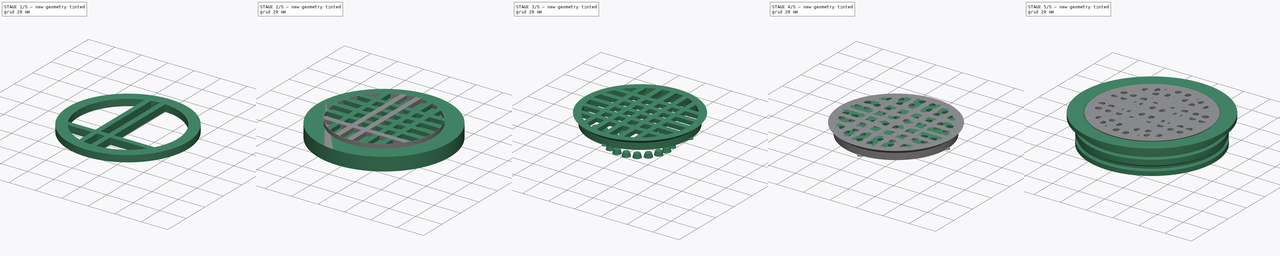
[diagram: build sequence overview — one tinted view per stage of 5, left to right]
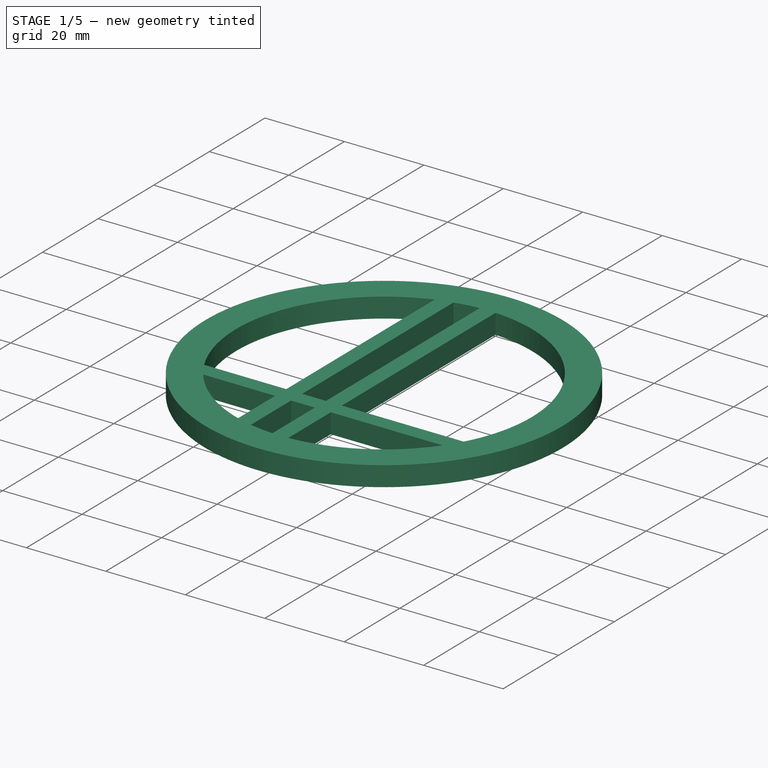
[diagram: stage 1 of 5 — iso view after this stage's code; geometry added in this stage tinted green]
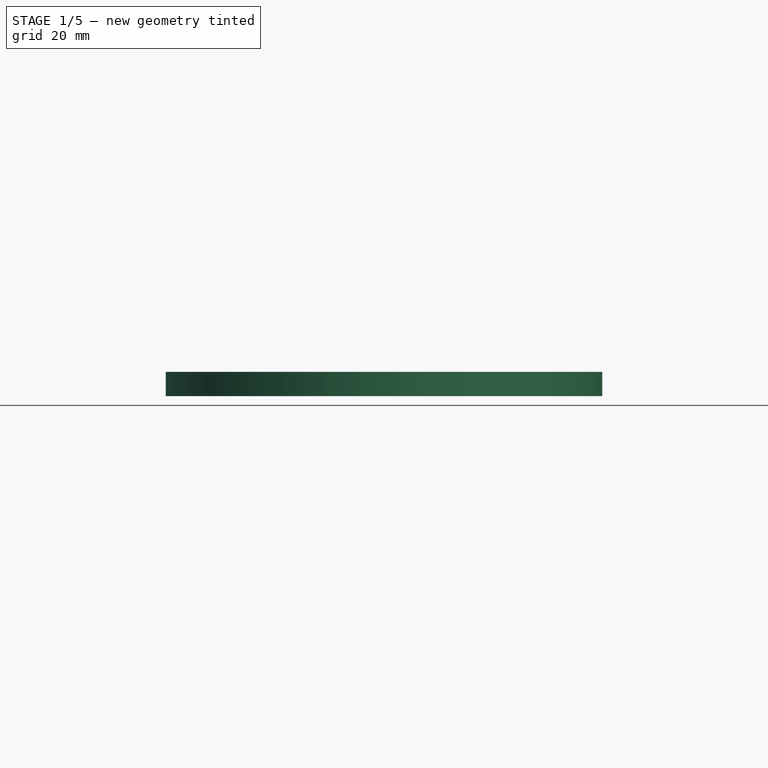
[diagram: stage 1 of 5 — front view after this stage's code; geometry added in this stage tinted green]
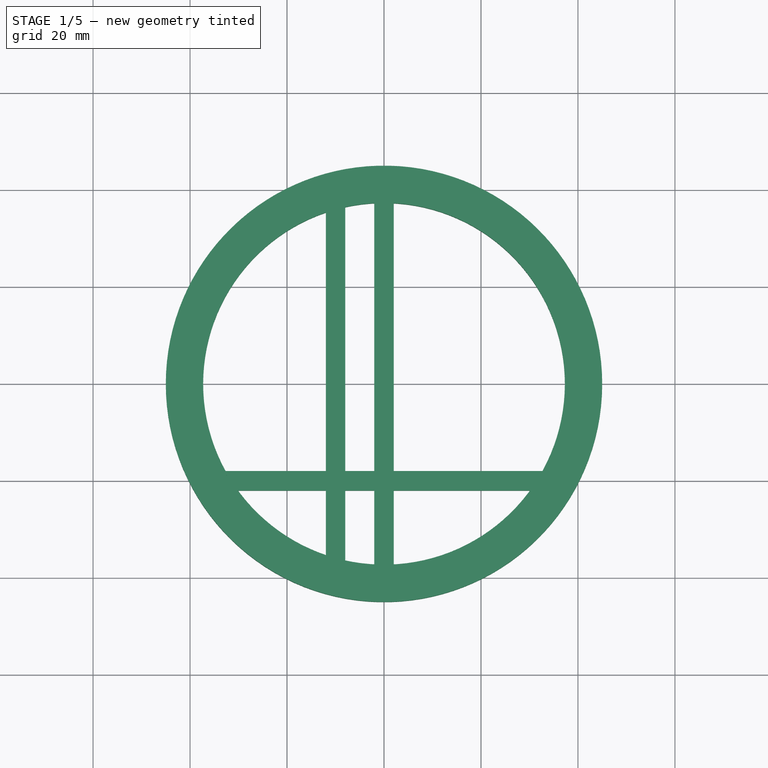
[diagram: stage 1 of 5 — top view after this stage's code; geometry added in this stage tinted green]
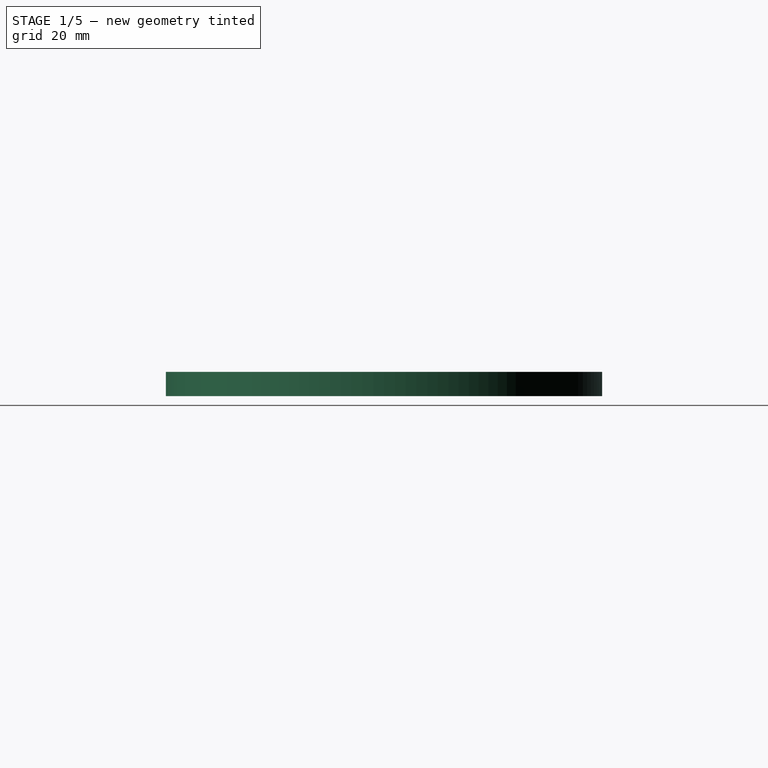
[diagram: stage 1 of 5 — right view after this stage's code; geometry added in this stage tinted green]
FCSTD DOCUMENT  (FreeCAD 0.18R4 (GitTag))
Label: rejilla_v5.0
License: All rights reserved
LicenseURL: http://en.wikipedia.org/wiki/All_rights_reserved
objects: Part::Box×10, Sketcher::SketchObject×7, Part::Cone×6, Part::Cylinder×6, Part::FeaturePython×5, Part::Cut×5, PartDesign::PolarPattern×4, Part::MultiFuse×4, PartDesign::Revolution×3, PartDesign::Body×3, PartDesign::Pocket×2, PartDesign::Pad×2
note: 64 computed .brp shape members not serialized (recipe doc carries the construction recipe); baked Part::Feature solids carry a one-line shape summary decoded from their .brp

FEATURE [Part::Cylinder] Cylinder060
  Angle = 360
  AttacherType = Attacher::AttachEngine3D
  Height = 5
  Placement = pos=(0,0,-41) rot=(0,0,1;0rad)
  Radius = 37.5
FEATURE [Part::Cylinder] Cylinder059
  Angle = 360
  AttacherType = Attacher::AttachEngine3D
  Height = 5
  Placement = pos=(0,0,-41) rot=(0,0,1;0rad)
  Radius = 45
FEATURE [Part::Box] Box022  label="Cube022"
  AttacherType = Attacher::AttachEngine3D
  Height = 5
  Length = 74
  Placement = pos=(-8,-37,-41) rot=(0,0,1;1.5708rad)
  Width = 4
FEATURE [Part::Cylinder] Cylinder067
  Angle = 360
  AttacherType = Attacher::AttachEngine3D
  Height = 5
  Placement = pos=(0,0,-41) rot=(0,0,1;0rad)
  Radius = 37.5
FEATURE [Part::Box] Box029  label="Cube029"
  AttacherType = Attacher::AttachEngine3D
  Height = 5
  Length = 76
  Placement = pos=(2,-38,-41) rot=(0,0,1;1.5708rad)
  Width = 4
FEATURE [Part::Box] Box027  label="Cube027"
  AttacherType = Attacher::AttachEngine3D
  Height = 5
  Length = 66
  Placement = pos=(-33,-22,-41) rot=(0,0,1;0rad)
  Width = 4
FEATURE [Part::Cylinder] Cylinder065
  Angle = 360
  AttacherType = Attacher::AttachEngine3D
  Height = 5
  Placement = pos=(0,0,-41) rot=(0,0,1;0rad)
  Radius = 37.3
FEATURE [Part::Cut] Cut032
  Base = -> Cylinder059
  Tool = -> Cylinder067
FEATURE [Part::Cut] Cut035  label="anillo002"
  Base = -> Cylinder060
  Tool = -> Cylinder065
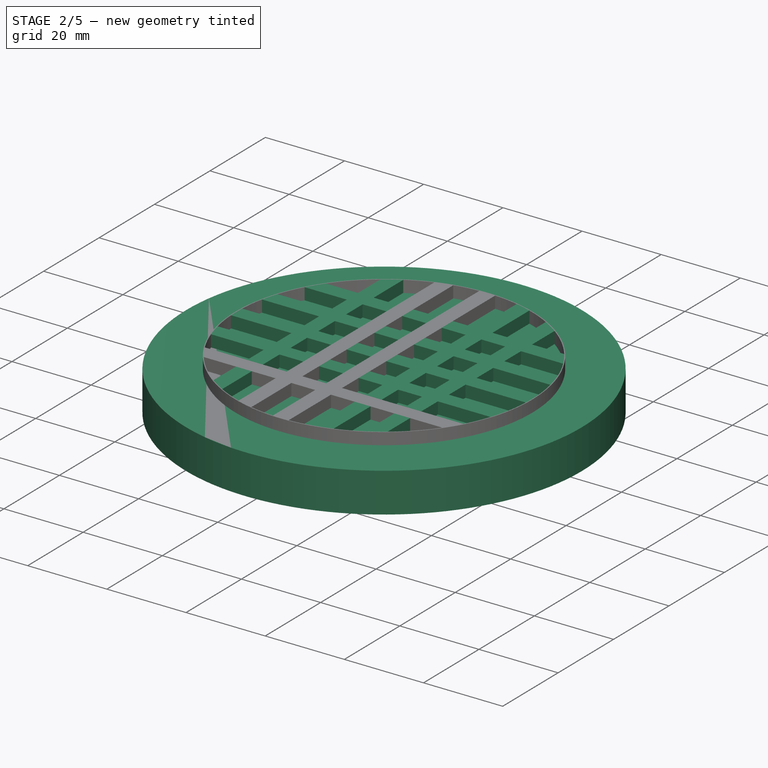
[diagram: stage 2 of 5 — iso view after this stage's code; geometry added in this stage tinted green]
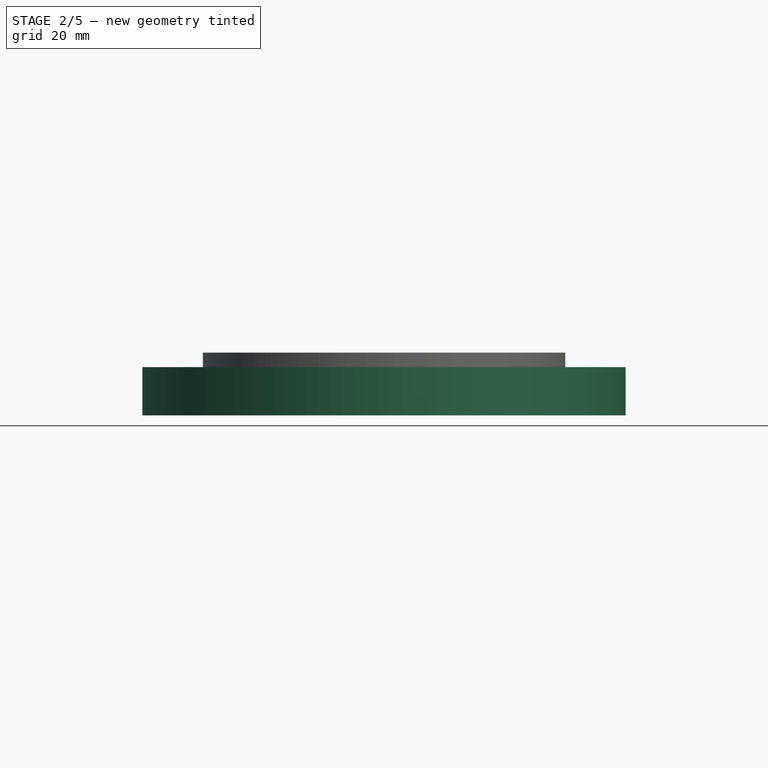
[diagram: stage 2 of 5 — front view after this stage's code; geometry added in this stage tinted green]
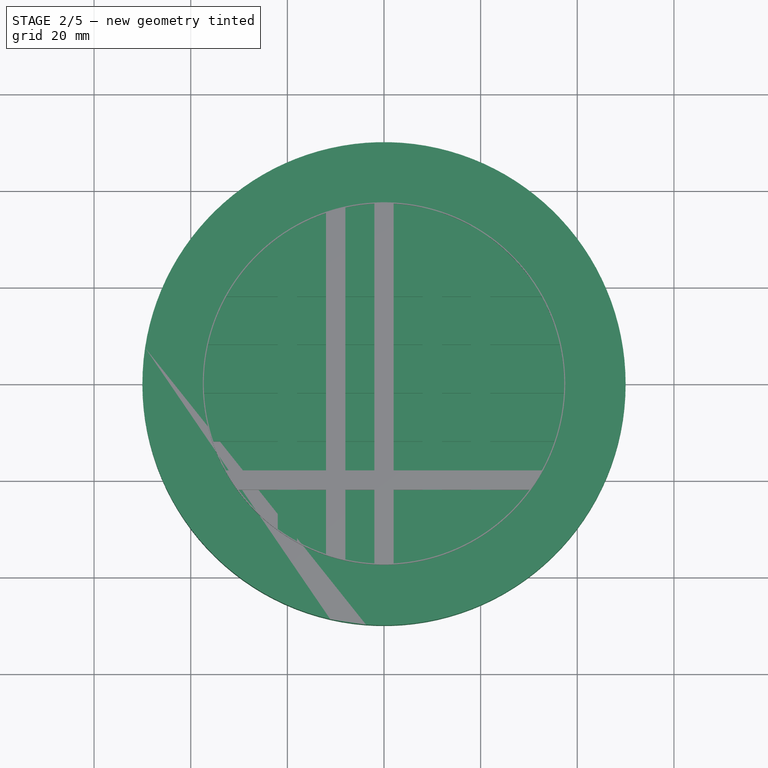
[diagram: stage 2 of 5 — top view after this stage's code; geometry added in this stage tinted green]
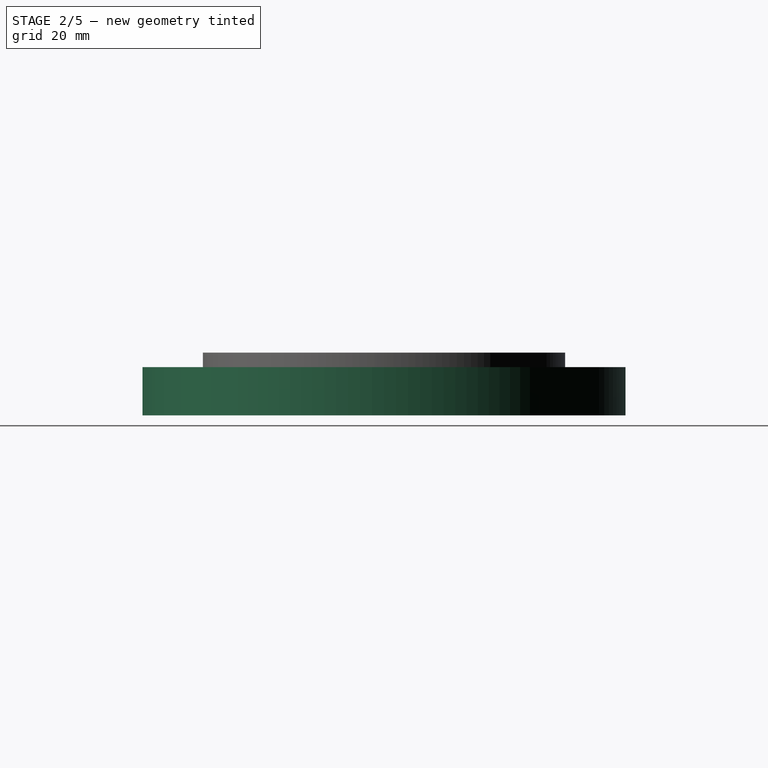
[diagram: stage 2 of 5 — right view after this stage's code; geometry added in this stage tinted green]
FEATURE [Part::Box] Box021  label="Cube021"
  AttacherType = Attacher::AttachEngine3D
  Height = 5
  Length = 66
  Placement = pos=(-33,18,-41) rot=(0,0,1;0rad)
  Width = 4
FEATURE [Part::Box] Box023  label="Cube023"
  AttacherType = Attacher::AttachEngine3D
  Height = 5
  Length = 74
  Placement = pos=(12,-37,-41) rot=(0,0,1;1.5708rad)
  Width = 4
FEATURE [Part::Box] Box028  label="Cube028"
  AttacherType = Attacher::AttachEngine3D
  Height = 5
  Length = 66
  Placement = pos=(22,-33,-41) rot=(0,0,1;1.5708rad)
  Width = 4
FEATURE [Part::Box] Box025  label="Cube025"
  AttacherType = Attacher::AttachEngine3D
  Height = 5
  Length = 74
  Placement = pos=(-37,-12,-41) rot=(0,0,1;0rad)
  Width = 4
FEATURE [Part::Box] Box024  label="Cube024"
  AttacherType = Attacher::AttachEngine3D
  Height = 5
  Length = 66
  Placement = pos=(-18,-33,-41) rot=(0,0,1;1.5708rad)
  Width = 4
FEATURE [Part::Cylinder] Cylinder063
  Angle = 360
  AttacherType = Attacher::AttachEngine3D
  Height = 10
  Placement = pos=(0,0,-49) rot=(0,0,1;0rad)
  Radius = 50
FEATURE [Part::Box] Box020  label="Cube020"
  AttacherType = Attacher::AttachEngine3D
  Height = 5
  Length = 74
  Placement = pos=(-37,8,-41) rot=(0,0,1;0rad)
  Width = 4
FEATURE [Part::Box] Box026  label="Cube026"
  AttacherType = Attacher::AttachEngine3D
  Height = 5
  Length = 76
  Placement = pos=(-38,-2,-41) rot=(0,0,1;0rad)
  Width = 4
FEATURE [Part::MultiFuse] Fusion022
  Shapes = -> [Cut035,Box024,Box028,Box022,Box020,Box025,Box027,Box026,Box021,Box029,Box023]
FEATURE [Part::Cut] Cut036  label="panal_version_1"
  Base = -> Fusion022
  Tool = -> Cut032
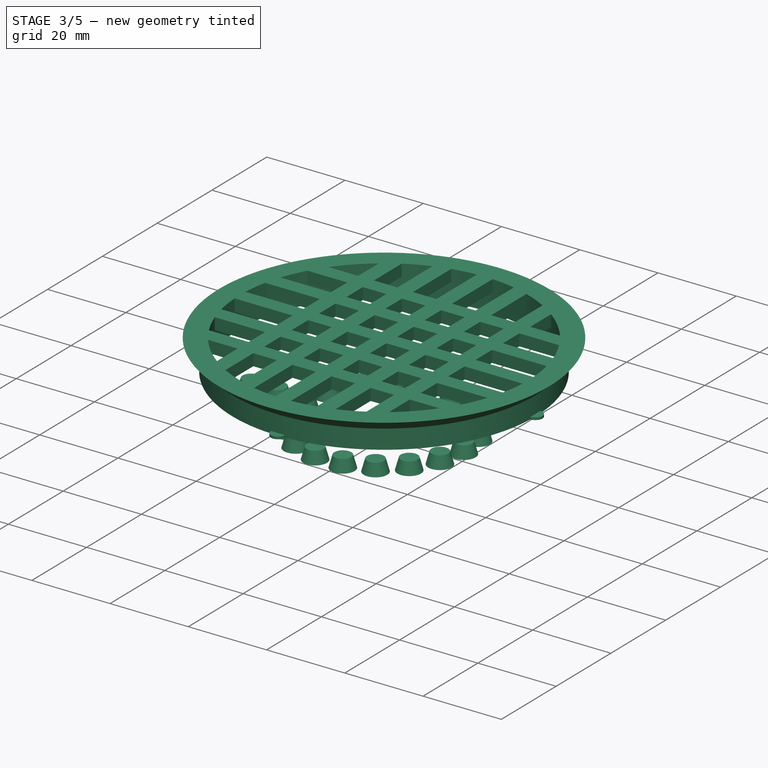
[diagram: stage 3 of 5 — iso view after this stage's code; geometry added in this stage tinted green]
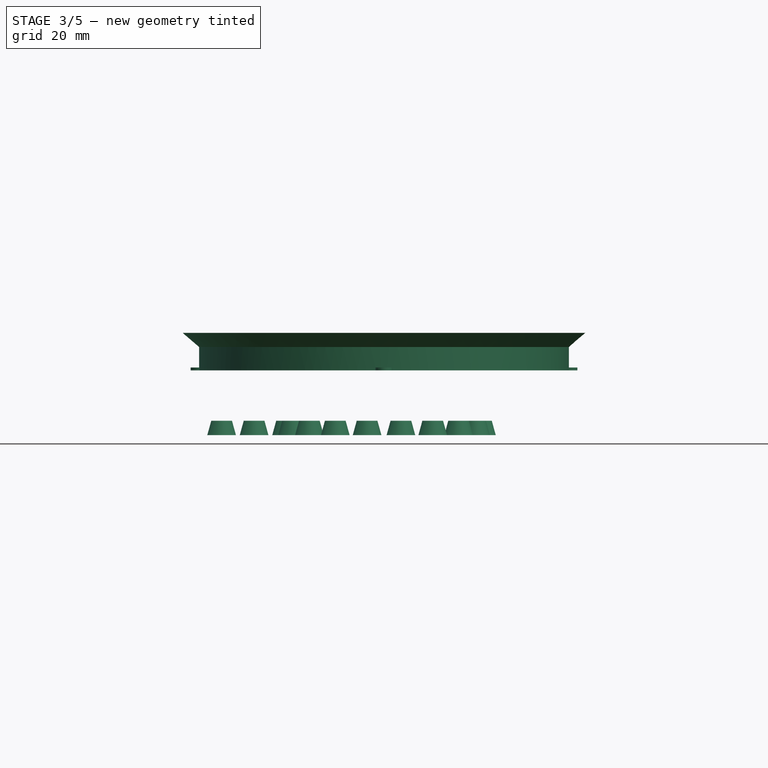
[diagram: stage 3 of 5 — front view after this stage's code; geometry added in this stage tinted green]
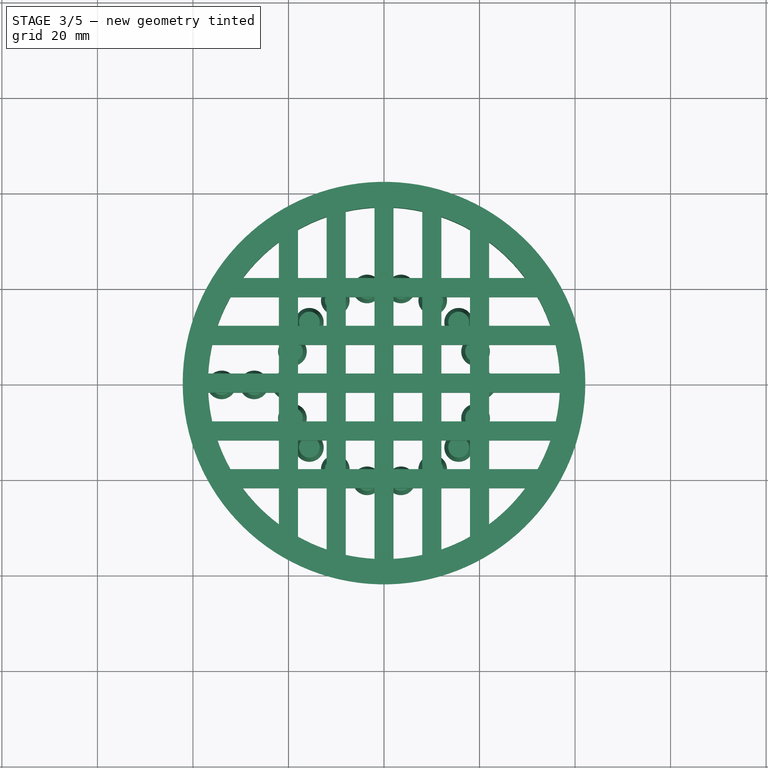
[diagram: stage 3 of 5 — top view after this stage's code; geometry added in this stage tinted green]
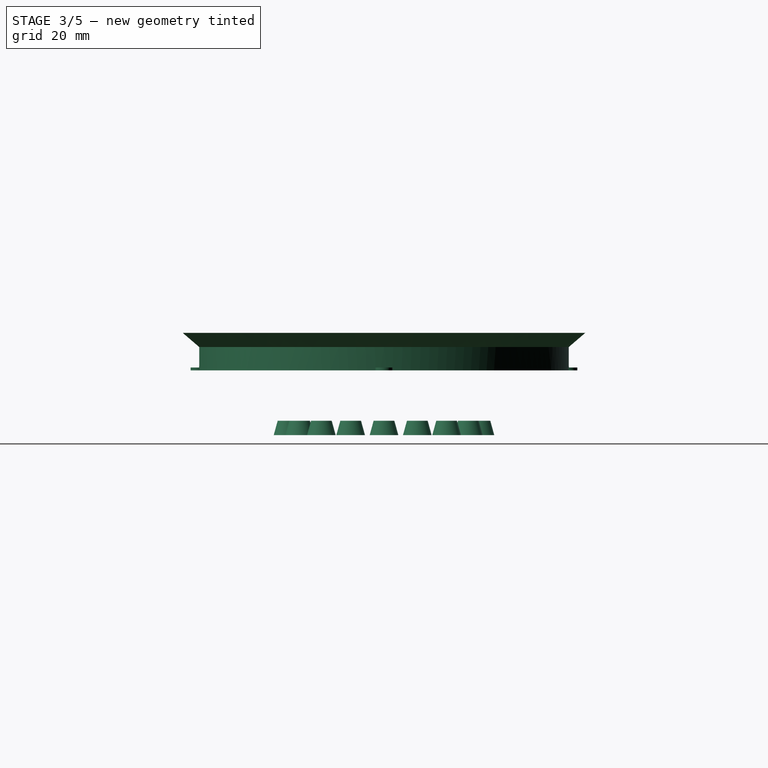
[diagram: stage 3 of 5 — right view after this stage's code; geometry added in this stage tinted green]
FEATURE [Part::Cone] Cone010  label="Cone004"
  Angle = 360
  AttacherType = Attacher::AttachEngine3D
  Height = 3
  Placement = pos=(-20.4,0,0) rot=(0,0,1;0rad)
  Radius1 = 3
  Radius2 = 2.17
FEATURE [Part::FeaturePython] Array007  # Draft array (typed FeaturePython)
  Angle = 360
  ArrayType = 1
  Axis = (0,0,1)
  Base = -> Cone010
  Center = (0,0,0)
  Fuse = false
  IntervalAxis = (0,0,0)
  IntervalX = (1,0,0)
  IntervalY = (0,1,0)
  IntervalZ = (0,0,1)
  NumberPolar = 18
  NumberX = 2
  NumberY = 2
  NumberZ = 1
FEATURE [Part::Cone] Cone011  label="Cone005"
  Angle = 360
  AttacherType = Attacher::AttachEngine3D
  Height = 3
  Placement = pos=(-27.2,0,0) rot=(0,0,1;0rad)
  Radius1 = 3
  Radius2 = 2.17
FEATURE [Part::Cone] Cone012  label="Cone006"
  Angle = 360
  AttacherType = Attacher::AttachEngine3D
  Height = 3
  Placement = pos=(-34,0,0) rot=(0,0,1;0rad)
  Radius1 = 3
  Radius2 = 2.17
FEATURE [Sketcher::SketchObject] Sketch006
  MapMode = 5
  Placement = pos=(0,0,0) rot=(1,0,0;1.5708rad)
  Support = -> [XZ_Plane002]
  sketch-geometry (7):
    g0: LineSegment StartX=-36.85 StartY=13.55 StartZ=0 EndX=-38.7 EndY=13.55 EndZ=0
    g1: LineSegment StartX=-38.7 StartY=13.55 StartZ=0 EndX=-38.7 EndY=18.443 EndZ=0
    g2: LineSegment StartX=-38.7 StartY=18.443 StartZ=0 EndX=-42.15 EndY=21.4 EndZ=0
    g3: LineSegment StartX=-42.15 StartY=21.4 StartZ=0 EndX=-36.85 EndY=21.4 EndZ=0
    g4: LineSegment [constr] StartX=-47 StartY=24.8283 StartZ=0 EndX=-31.8146 EndY=11.8128 EndZ=0
    g5: LineSegment StartX=-36.85 StartY=21.4 StartZ=0 EndX=-36.85 EndY=13.55 EndZ=0
    g6: LineSegment [constr] StartX=-39.5 StartY=18.4 StartZ=0 EndX=-9.5 EndY=18.4 EndZ=0
  constraints (23):
    c: Angle(g-1,g4) = 2.43299
    c: Coincident(g3,g2)
    c: Coincident(g1,g2)
    c: Coincident(g0,g1)
    c: Vertical(g5)
    c: Vertical(g1)
    c: Horizontal(g3)
    c: Horizontal(g0)
    c: Parallel(g2,g4)
    c: Coincident(g3,g5)
    c: Distance(g4) = 20
    c: Horizontal(g6)
    c: PointOnObject(g6,g4)
    c: DistanceY(g-1,g6) = 18.4
    c: DistanceX(g6,g6) = 30
    c: DistanceX(g6,g-1) = 39.5
    c: DistanceX(g4,g-1) = 47
    c: Coincident(g0,g5)
    c: DistanceX(g2,g-1) = 42.15
    c: DistanceY(g-1,g3) = 21.4
    c: DistanceX(g3,g-1) = 36.85
    c: DistanceY(g5,g5) = 7.85
    c: DistanceX(g0,g-1) = 38.7
FEATURE [PartDesign::Revolution] Revolution002
  Angle = 360
  Axis = (0,2e-16,1)
  Base = (0,0,0)
  Placement = pos=(0,0,0) rot=(1,0,0;1.5708rad)
  Profile = -> Sketch006
  ReferenceAxis = -> Sketch006 [V_Axis]
FEATURE [Sketcher::SketchObject] Sketch005
  ExternalGeometry = -> [Revolution002]
  MapMode = 5
  Placement = pos=(0,9e-15,13.55) rot=(1,0,0;3.14159rad)
  Support = -> [Revolution002]
  sketch-geometry (1):
    g0: Circle CenterX=-38.7 CenterY=0 CenterZ=0 NormalX=0 NormalY=0 NormalZ=1 AngleXU=0 Radius=1.8
  constraints (3):
    c: PointOnObject(g0,g-3)
    c: PointOnObject(g0,g-1)
    c: Radius(g0) = 1.8
FEATURE [PartDesign::Pad] Pad001
  BaseFeature = -> Revolution002
  Length = 0.6
  Length2 = 100
  Placement = pos=(0,0,0) rot=(1,0,0;1.5708rad)
  Profile = -> Sketch005
  Reversed = true
  Type = 0
FEATURE [PartDesign::PolarPattern] PolarPattern003
  Angle = 360
  Axis = -> Sketch005 [N_Axis]
  BaseFeature = -> Pad001
  Occurrences = 4
  Originals = -> [Pad001]
  Placement = pos=(0,0,0) rot=(1,0,0;1.5708rad)
FEATURE [Part::Cut] Cut034  label="panal_version1"
  Base = -> Cut036
  Placement = pos=(0,0,57.4) rot=(0,0,1;0rad)
  Tool = -> Cylinder063
FEATURE [Part::MultiFuse] Fusion036  label="interno1"
  Shapes = -> [Body002,Cut034]
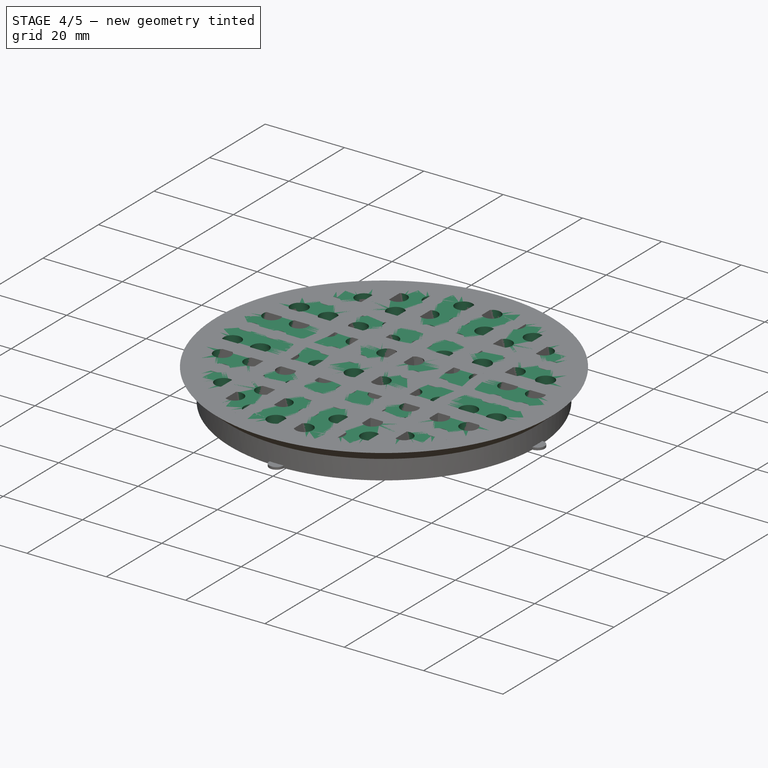
[diagram: stage 4 of 5 — iso view after this stage's code; geometry added in this stage tinted green]
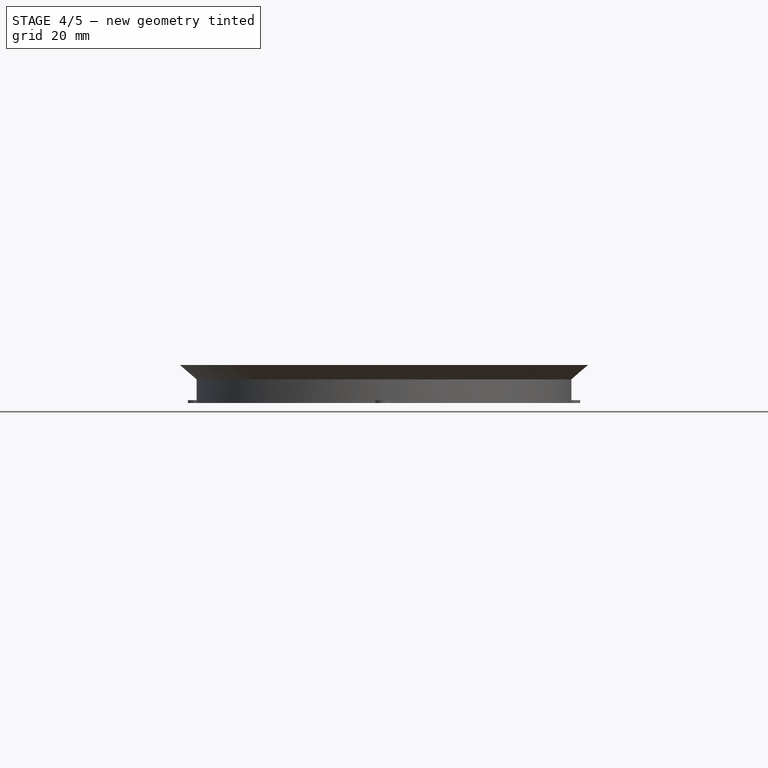
[diagram: stage 4 of 5 — front view after this stage's code; geometry added in this stage tinted green]
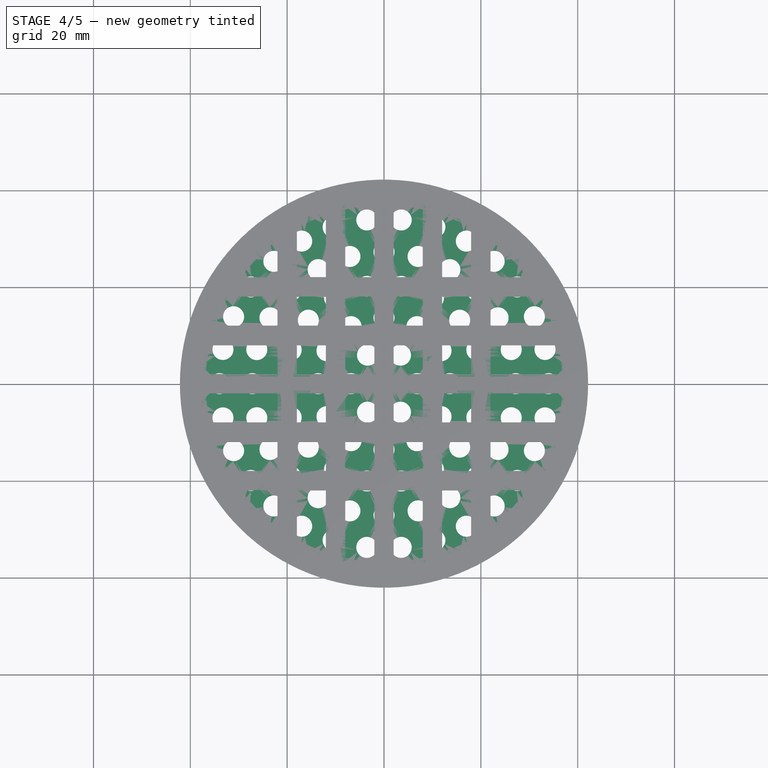
[diagram: stage 4 of 5 — top view after this stage's code; geometry added in this stage tinted green]
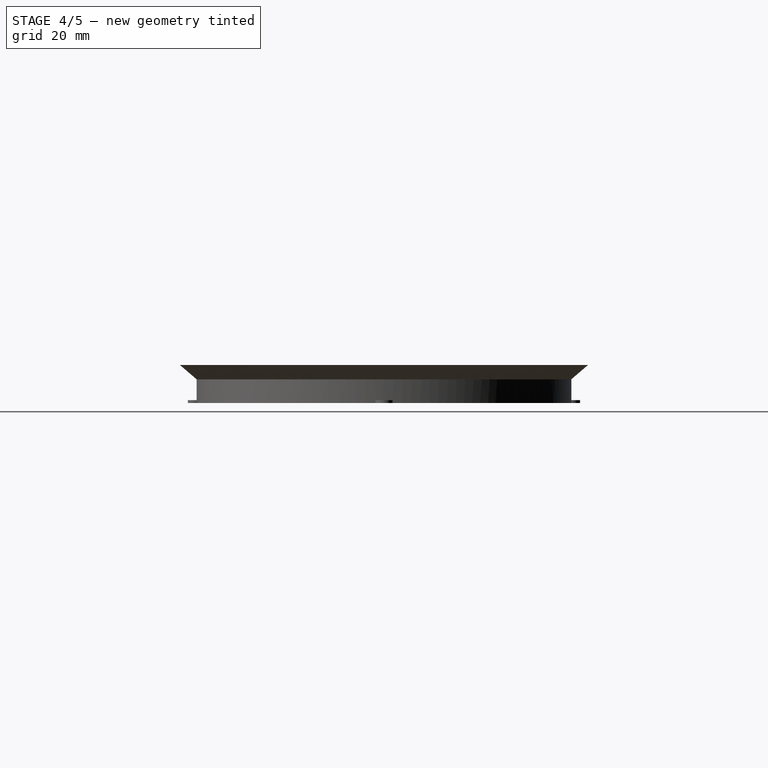
[diagram: stage 4 of 5 — right view after this stage's code; geometry added in this stage tinted green]
FEATURE [PartDesign::Body] Body001  label="aro_interno"
  Group = -> [Sketch003,Revolution001,Sketch004,Pad,PolarPattern002]
  Origin = -> Origin001
  Tip = -> PolarPattern002
FEATURE [Part::Cone] Cone009  label="Cone003"
  Angle = 360
  AttacherType = Attacher::AttachEngine3D
  Height = 3
  Placement = pos=(-13.6,0,0) rot=(0,0,1;0rad)
  Radius1 = 3
  Radius2 = 2.17
FEATURE [Part::Cone] Cone007  label="Cone001"
  Angle = 360
  AttacherType = Attacher::AttachEngine3D
  Height = 3
  Radius1 = 3
  Radius2 = 2.17
FEATURE [Part::Cone] Cone008  label="Cone002"
  Angle = 360
  AttacherType = Attacher::AttachEngine3D
  Height = 3
  Placement = pos=(-6.8,0,0) rot=(0,0,1;0rad)
  Radius1 = 3
  Radius2 = 2.17
FEATURE [Part::FeaturePython] Array005  # Draft array (typed FeaturePython)
  Angle = 360
  ArrayType = 1
  Axis = (0,0,1)
  Base = -> Cone008
  Center = (0,0,0)
  Fuse = false
  IntervalAxis = (0,0,0)
  IntervalX = (1,0,0)
  IntervalY = (0,1,0)
  IntervalZ = (0,0,1)
  NumberPolar = 6
  NumberX = 2
  NumberY = 2
  NumberZ = 1
FEATURE [Part::FeaturePython] Array006  # Draft array (typed FeaturePython)
  Angle = 360
  ArrayType = 1
  Axis = (0,0,1)
  Base = -> Cone009
  Center = (0,0,0)
  Fuse = false
  IntervalAxis = (0,0,0)
  IntervalX = (1,0,0)
  IntervalY = (0,1,0)
  IntervalZ = (0,0,1)
  NumberPolar = 12
  NumberX = 2
  NumberY = 2
  NumberZ = 1
FEATURE [Part::Cylinder] Cylinder106
  Angle = 360
  AttacherType = Attacher::AttachEngine3D
  Height = 3
  Radius = 38
FEATURE [Part::FeaturePython] Array008  # Draft array (typed FeaturePython)
  Angle = 360
  ArrayType = 1
  Axis = (0,0,1)
  Base = -> Cone011
  Center = (0,0,0)
  Fuse = false
  IntervalAxis = (0,0,0)
  IntervalX = (1,0,0)
  IntervalY = (0,1,0)
  IntervalZ = (0,0,1)
  NumberPolar = 24
  NumberX = 2
  NumberY = 2
  NumberZ = 1
FEATURE [Part::FeaturePython] Array009  # Draft array (typed FeaturePython)
  Angle = 360
  ArrayType = 1
  Axis = (0,0,1)
  Base = -> Cone012
  Center = (0,0,0)
  Fuse = false
  IntervalAxis = (0,0,0)
  IntervalX = (1,0,0)
  IntervalY = (0,1,0)
  IntervalZ = (0,0,1)
  NumberPolar = 30
  NumberX = 2
  NumberY = 2
  NumberZ = 1
FEATURE [Part::MultiFuse] Fusion035
  Shapes = -> [Cone007,Array005,Array006,Array007,Array008,Array009]
FEATURE [Part::Cut] Cut053  label="panal2_v2"
  Base = -> Cylinder106
  Placement = pos=(2.5e-15,0,18.4) rot=(0,0,1;0rad)
  Tool = -> Fusion035
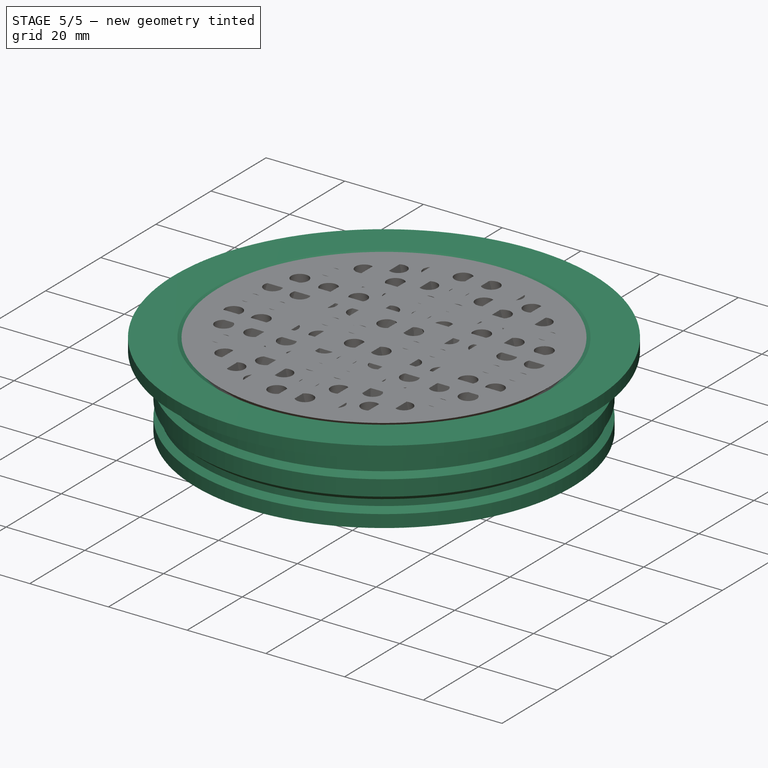
[diagram: stage 5 of 5 — iso view after this stage's code; geometry added in this stage tinted green]
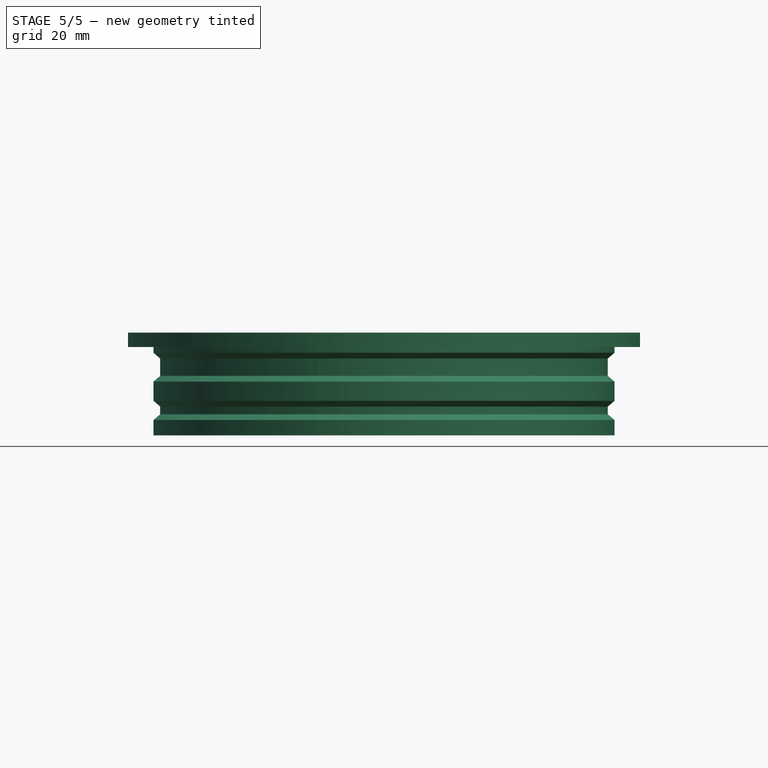
[diagram: stage 5 of 5 — front view after this stage's code; geometry added in this stage tinted green]
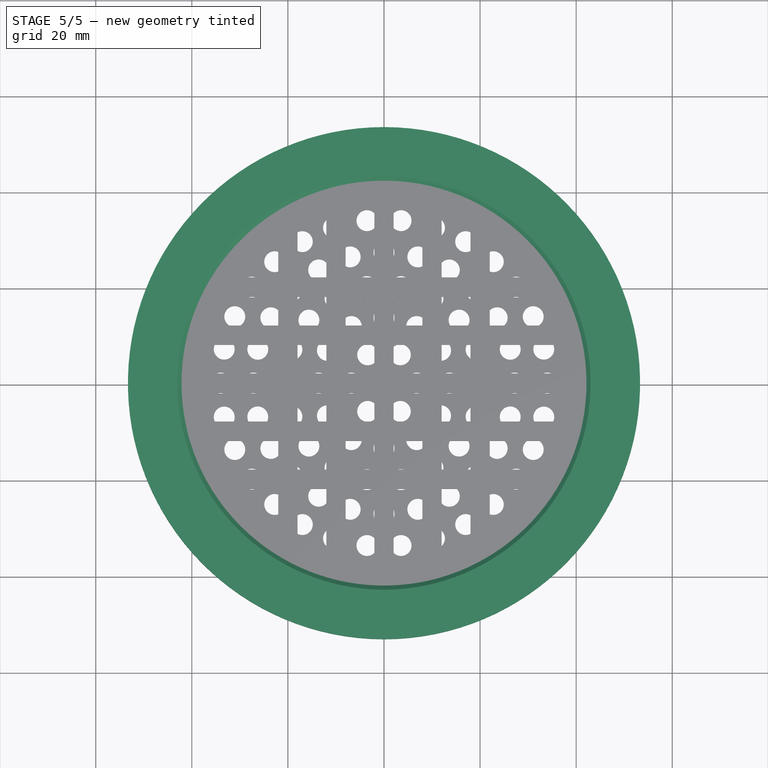
[diagram: stage 5 of 5 — top view after this stage's code; geometry added in this stage tinted green]
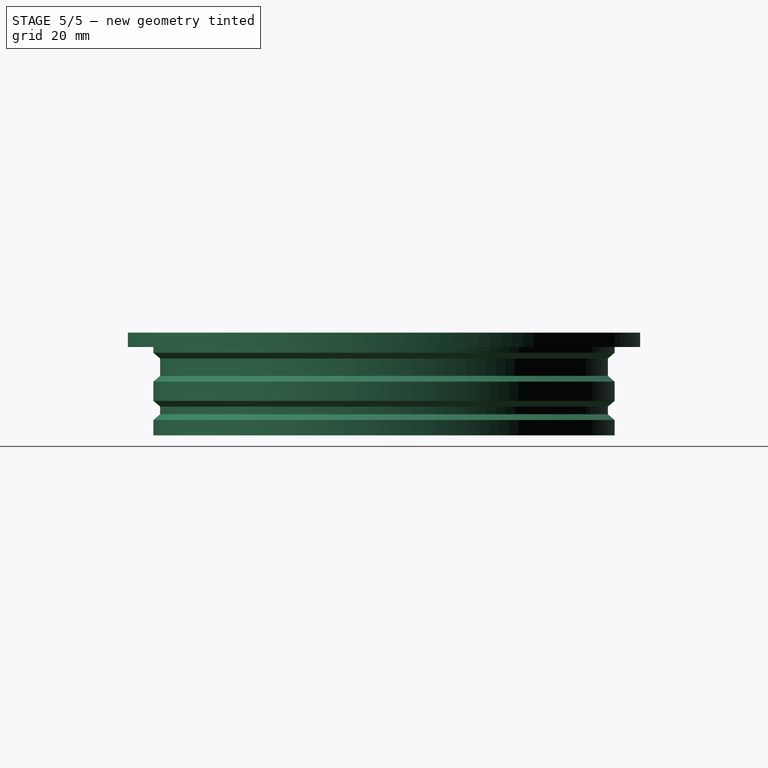
[diagram: stage 5 of 5 — right view after this stage's code; geometry added in this stage tinted green]
FEATURE [Sketcher::SketchObject] Sketch
  MapMode = 5
  Placement = pos=(0,0,0) rot=(0.57735,0.57735,0.57735;2.0944rad)
  Support = -> [YZ_Plane]
  sketch-geometry (21):
    g0: LineSegment StartX=-37.6 StartY=0 StartZ=0 EndX=-48 EndY=0 EndZ=0
    g1: LineSegment StartX=-48 StartY=0 StartZ=0 EndX=-48 EndY=3.2 EndZ=0
    g2: LineSegment StartX=-48 StartY=3.2 StartZ=0 EndX=-46.6 EndY=4.4 EndZ=0
    g3: LineSegment StartX=-46.6 StartY=4.4 StartZ=0 EndX=-46.6 EndY=6 EndZ=0
    g4: LineSegment StartX=-46.6 StartY=6 StartZ=0 EndX=-48 EndY=7.2 EndZ=0
    g5: LineSegment StartX=-48 StartY=7.2 StartZ=0 EndX=-48 EndY=11.2 EndZ=0
    g6: LineSegment StartX=-48 StartY=11.2 StartZ=0 EndX=-46.6 EndY=12.4 EndZ=0
    g7: LineSegment StartX=-46.6 StartY=12.4 StartZ=0 EndX=-46.6 EndY=16 EndZ=0
    g8: LineSegment StartX=-46.6 StartY=16 StartZ=0 EndX=-48 EndY=17.2 EndZ=0
    g9: LineSegment StartX=-48 StartY=17.2 StartZ=0 EndX=-48 EndY=18.4 EndZ=0
    g10: LineSegment StartX=-48 StartY=18.4 StartZ=0 EndX=-53.3 EndY=18.4 EndZ=0
    g11: LineSegment StartX=-53.3 StartY=18.4 StartZ=0 EndX=-53.3 EndY=21.4 EndZ=0
    g12: LineSegment StartX=-53.3 StartY=21.4 StartZ=0 EndX=-43 EndY=21.4 EndZ=0
    g13: LineSegment StartX=-43 StartY=21.4 StartZ=0 EndX=-39.5 EndY=18.4 EndZ=0
    g14: LineSegment StartX=-39.5 StartY=18.4 StartZ=0 EndX=-39.5 EndY=13.4 EndZ=0
    g15: LineSegment StartX=-39.5 StartY=13.4 StartZ=0 EndX=-37.6 EndY=13.4 EndZ=0
    g16: LineSegment StartX=-37.6 StartY=13.4 StartZ=0 EndX=-37.6 EndY=0 EndZ=0
    g17: LineSegment [constr] StartX=-46.6 StartY=4.4 StartZ=0 EndX=-37.6 EndY=4.4 EndZ=0
    g18: LineSegment [constr] StartX=-46.6 StartY=12.4 StartZ=0 EndX=-37.6 EndY=12.4 EndZ=0
    g19: LineSegment [constr] StartX=-48 StartY=17.2 StartZ=0 EndX=-37.6 EndY=17.2 EndZ=0
    g20: LineSegment [constr] StartX=-48 StartY=7.2 StartZ=0 EndX=-37.6 EndY=7.2 EndZ=0
  constraints (63):
    c: Horizontal(g0)
    c: Coincident(g0,g1)
    c: Vertical(g1)
    c: Coincident(g1,g2)
    c: Coincident(g2,g3)
    c: Vertical(g3)
    c: Coincident(g3,g4)
    c: Coincident(g4,g5)
    c: Vertical(g5)
    c: Coincident(g5,g6)
    c: Coincident(g6,g7)
    c: Vertical(g7)
    c: Coincident(g7,g8)
    c: Coincident(g8,g9)
    c: Vertical(g9)
    c: Coincident(g9,g10)
    c: Horizontal(g10)
    c: Coincident(g10,g11)
    c: Vertical(g11)
    c: Coincident(g11,g12)
    c: Horizontal(g12)
    c: Coincident(g12,g13)
    c: Coincident(g13,g14)
    c: Vertical(g14)
    c: Coincident(g14,g15)
    c: Horizontal(g15)
    c: Coincident(g15,g16)
    c: Coincident(g16,g0)
    c: Vertical(g16)
    c: PointOnObject(g0,g-1)
    c: DistanceX(g0,g-1) = 37.6
    c: DistanceY(g0,g1) = 3.2
    c: DistanceY(g1,g2) = 1.2
    c: DistanceX(g14,g-1) = 39.5
    c: DistanceX(g12,g-1) = 43
    c: DistanceX(g11,g-1) = 53.3
    c: DistanceX(g0,g-1) = 48
    c: Coincident(g17,g2)
    c: Horizontal(g17)
    c: PointOnObject(g17,g16)
    c: Coincident(g18,g6)
    c: Horizontal(g18)
    c: PointOnObject(g18,g16)
    c: Equal(g17,g18)
    c: DistanceX(g2,g-1) = 46.6
    c: DistanceY(g2,g3) = 1.6
    c: DistanceY(g3,g4) = 1.2
    c: DistanceY(g4,g5) = 4
    c: DistanceY(g5,g6) = 1.2
    c: DistanceY(g6,g7) = 3.6
    c: Coincident(g19,g8)
    c: Horizontal(g19)
    c: PointOnObject(g19,g16)
    c: Equal(g19,g0)
    c: DistanceY(g7,g8) = 1.2
    c: DistanceY(g8,g9) = 1.2
    c: DistanceY(g10,g11) = 3
    c: DistanceY(g-1,g15) = 13.4
    c: DistanceY(g14,g13) = 5
    c: Coincident(g20,g4)
    c: PointOnObject(g20,g16)
    c: Horizontal(g20)
    c: Equal(g20,g0)
FEATURE [PartDesign::Revolution] Revolution
  Angle = 360
  Axis = (-2e-16,3e-16,1)
  Base = (0,0,0)
  Placement = pos=(0,0,0) rot=(0.57735,0.57735,0.57735;2.0944rad)
  Profile = -> Sketch
  ReferenceAxis = -> Sketch [V_Axis]
FEATURE [Sketcher::SketchObject] Sketch001
  MapMode = 5
  Placement = pos=(-7.4e-15,5.2e-15,13.4) rot=(0,0,-1;1.5708rad)
  Support = -> [Revolution]
  sketch-geometry (1):
    g0: Circle CenterX=0 CenterY=39.95 CenterZ=0 NormalX=0 NormalY=0 NormalZ=1 AngleXU=0 Radius=2
  constraints (3):
    c: PointOnObject(g0,g-2)
    c: DistanceY(g-1,g0) = 39.95
    c: Radius(g0) = 2
FEATURE [PartDesign::Pocket] Pocket
  BaseFeature = -> Revolution
  Length = 5
  Length2 = 100
  Midplane = true
  Placement = pos=(0,0,0) rot=(0.57735,0.57735,0.57735;2.0944rad)
  Profile = -> Sketch001
  Type = 1
FEATURE [PartDesign::PolarPattern] PolarPattern
  Angle = 360
  Axis = -> Sketch001 [N_Axis]
  BaseFeature = -> Pocket
  Occurrences = 4
  Originals = -> [Pocket]
  Placement = pos=(0,0,0) rot=(0.57735,0.57735,0.57735;2.0944rad)
FEATURE [Sketcher::SketchObject] Sketch002
  MapMode = 5
  Placement = pos=(-1.19e-14,6.7e-15,13.4) rot=(0,0,-1;1.5708rad)
  Support = -> [PolarPattern]
  sketch-geometry (3):
    g0: LineSegment StartX=-41.95 StartY=5.1e-15 StartZ=0 EndX=0 EndY=0 EndZ=0
    g1: LineSegment StartX=-4e-16 StartY=0 StartZ=0 EndX=-36.3298 EndY=20.975 EndZ=0
    g2: ArcOfCircle CenterX=-4e-16 CenterY=0 CenterZ=0 NormalX=0 NormalY=0 NormalZ=1 AngleXU=0 Radius=41.95 StartAngle=2.61799 EndAngle=3.14159
  constraints (9):
    c: Angle(g1,g0) = 0.523599
    c: DistanceX(g0,g0) = 41.95
    c: Equal(g0,g1)
    c: Coincident(g0,g2)
    c: Coincident(g1,g2)
    c: Coincident(g0,g1)
    c: Coincident(g0,g2)
    c: Coincident(g0,g-1)
    c: PointOnObject(g0,g-1)
FEATURE [PartDesign::Pocket] Pocket001
  BaseFeature = -> PolarPattern
  Length = 1
  Length2 = 100
  Placement = pos=(0,0,0) rot=(0.57735,0.57735,0.57735;2.0944rad)
  Profile = -> Sketch002
  Reversed = true
  Type = 0
FEATURE [PartDesign::PolarPattern] PolarPattern001
  Angle = 360
  Axis = -> Sketch002 [N_Axis]
  BaseFeature = -> Pocket001
  Occurrences = 4
  Originals = -> [Pocket001]
  Placement = pos=(0,0,0) rot=(0.57735,0.57735,0.57735;2.0944rad)
FEATURE [PartDesign::Body] Body  label="externa"
  Group = -> [Sketch,Revolution,Sketch001,Pocket,PolarPattern,Sketch002,Pocket001,PolarPattern001]
  Origin = -> Origin
  Tip = -> PolarPattern001
FEATURE [Sketcher::SketchObject] Sketch003
  MapMode = 5
  Placement = pos=(0,0,0) rot=(1,0,0;1.5708rad)
  Support = -> [XZ_Plane001]
  sketch-geometry (7):
    g0: LineSegment StartX=-36.85 StartY=13.55 StartZ=0 EndX=-38.7 EndY=13.55 EndZ=0
    g1: LineSegment StartX=-38.7 StartY=13.55 StartZ=0 EndX=-38.7 EndY=18.443 EndZ=0
    g2: LineSegment StartX=-38.7 StartY=18.443 StartZ=0 EndX=-42.15 EndY=21.4 EndZ=0
    g3: LineSegment StartX=-42.15 StartY=21.4 StartZ=0 EndX=-36.85 EndY=21.4 EndZ=0
    g4: LineSegment [constr] StartX=-47 StartY=24.8283 StartZ=0 EndX=-31.8146 EndY=11.8128 EndZ=0
    g5: LineSegment StartX=-36.85 StartY=21.4 StartZ=0 EndX=-36.85 EndY=13.55 EndZ=0
    g6: LineSegment [constr] StartX=-39.5 StartY=18.4 StartZ=0 EndX=-9.5 EndY=18.4 EndZ=0
  constraints (23):
    c: Angle(g-1,g4) = 2.43299
    c: Coincident(g3,g2)
    c: Coincident(g1,g2)
    c: Coincident(g0,g1)
    c: Vertical(g5)
    c: Vertical(g1)
    c: Horizontal(g3)
    c: Horizontal(g0)
    c: Parallel(g2,g4)
    c: Coincident(g3,g5)
    c: Distance(g4) = 20
    c: Horizontal(g6)
    c: PointOnObject(g6,g4)
    c: DistanceY(g-1,g6) = 18.4
    c: DistanceX(g6,g6) = 30
    c: DistanceX(g6,g-1) = 39.5
    c: DistanceX(g4,g-1) = 47
    c: Coincident(g0,g5)
    c: DistanceX(g2,g-1) = 42.15
    c: DistanceY(g-1,g3) = 21.4
    c: DistanceX(g3,g-1) = 36.85
    c: DistanceY(g5,g5) = 7.85
    c: DistanceX(g0,g-1) = 38.7
FEATURE [PartDesign::Revolution] Revolution001
  Angle = 360
  Axis = (0,2e-16,1)
  Base = (0,0,0)
  Placement = pos=(0,0,0) rot=(1,0,0;1.5708rad)
  Profile = -> Sketch003
  ReferenceAxis = -> Sketch003 [V_Axis]
FEATURE [Sketcher::SketchObject] Sketch004
  ExternalGeometry = -> [Revolution001]
  MapMode = 5
  Placement = pos=(0,9e-15,13.55) rot=(1,0,0;3.14159rad)
  Support = -> [Revolution001]
  sketch-geometry (1):
    g0: Circle CenterX=-38.7 CenterY=0 CenterZ=0 NormalX=0 NormalY=0 NormalZ=1 AngleXU=0 Radius=1.8
  constraints (3):
    c: PointOnObject(g0,g-3)
    c: PointOnObject(g0,g-1)
    c: Radius(g0) = 1.8
FEATURE [PartDesign::Pad] Pad
  BaseFeature = -> Revolution001
  Length = 0.6
  Length2 = 100
  Placement = pos=(0,0,0) rot=(1,0,0;1.5708rad)
  Profile = -> Sketch004
  Reversed = true
  Type = 0
FEATURE [PartDesign::PolarPattern] PolarPattern002
  Angle = 360
  Axis = -> Sketch004 [N_Axis]
  BaseFeature = -> Pad
  Occurrences = 4
  Originals = -> [Pad]
  Placement = pos=(0,0,0) rot=(1,0,0;1.5708rad)
FEATURE [PartDesign::Body] Body002  label="aro_interno001"
  Group = -> [Sketch006,Revolution002,Sketch005,Pad001,PolarPattern003]
  Origin = -> Origin002
  Tip = -> PolarPattern003
FEATURE [Part::MultiFuse] Fusion  label="interno2_2"
  Shapes = -> [Body001,Cut053]
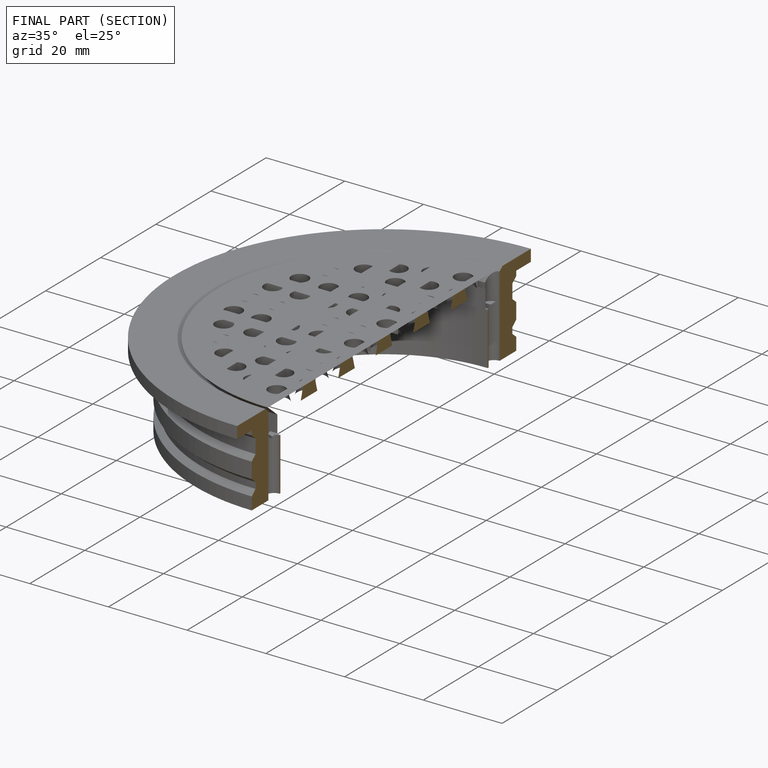
[diagram: finished part — half-section view (interior)]
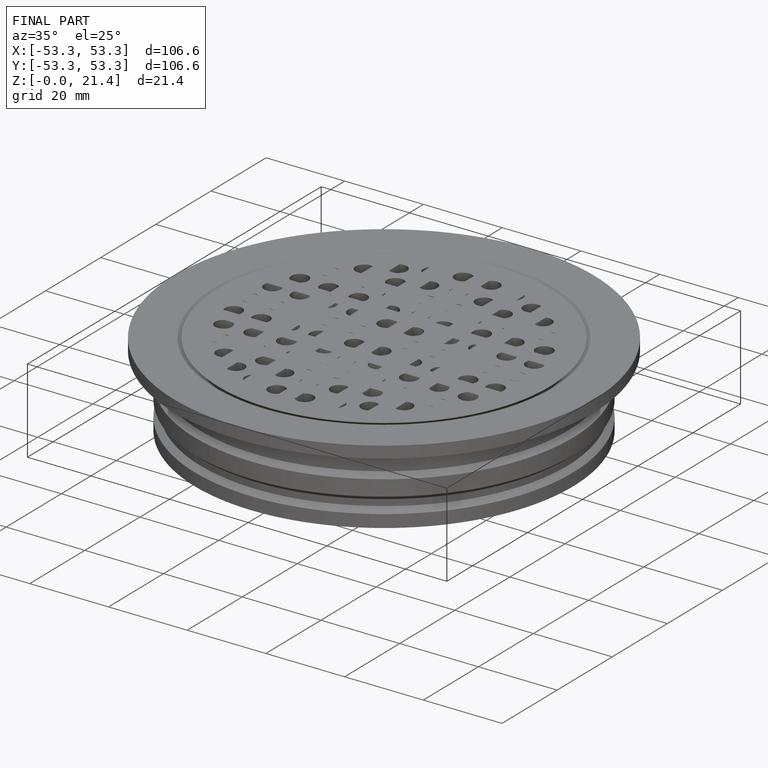
[diagram: finished part — iso view with bounding-box wireframe]
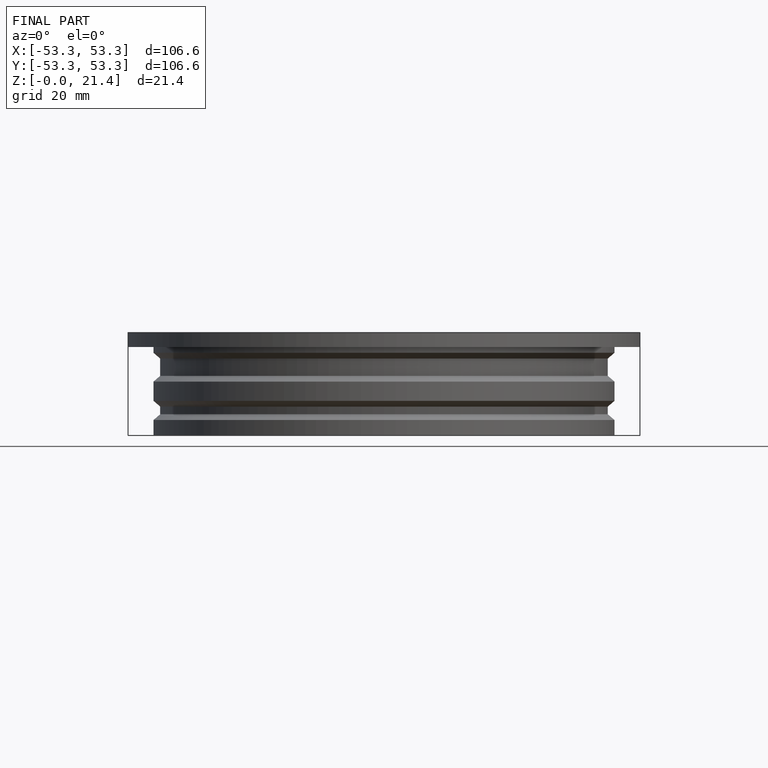
[diagram: finished part — front view with bounding-box wireframe]
